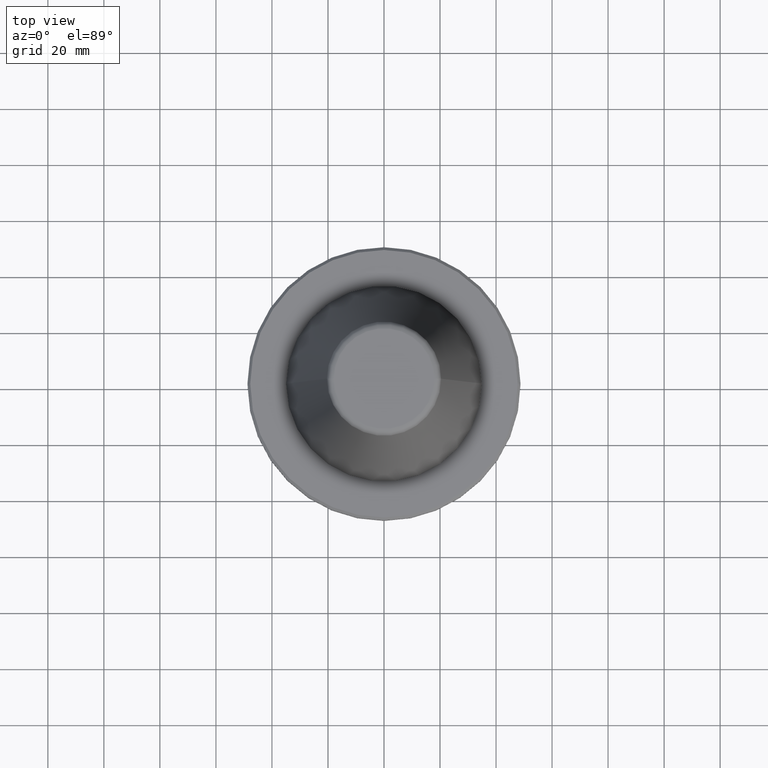
[diagram: clean part render]
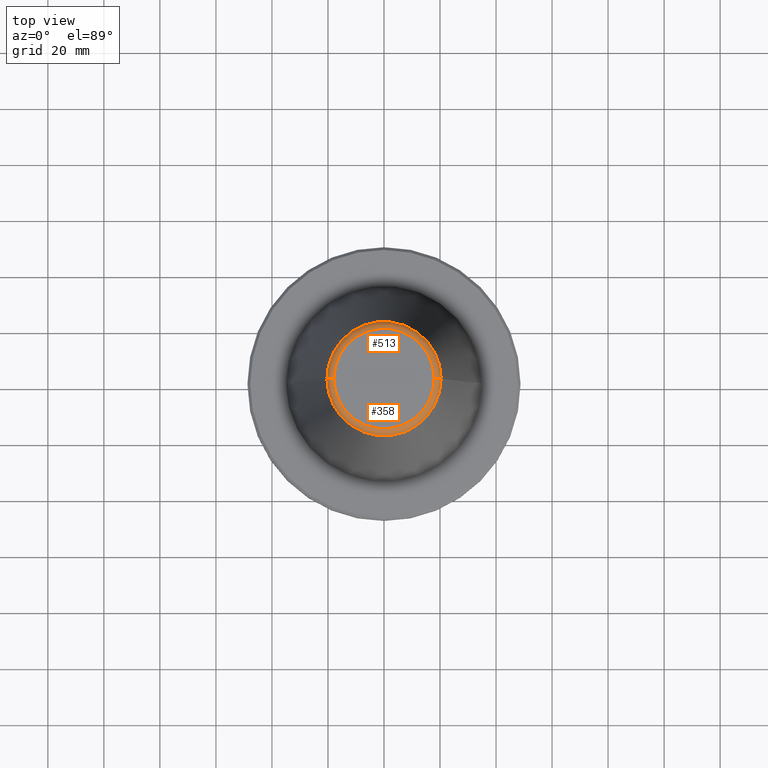
[diagram: same view with one multi-face feature highlighted, each face labeled with its STEP entity id]
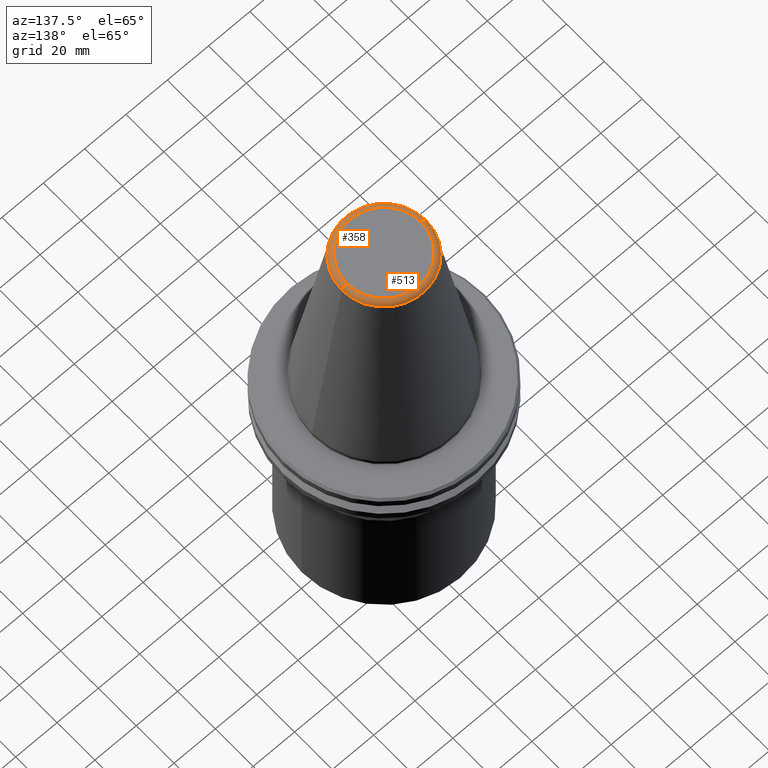
[diagram: same view with one multi-face feature highlighted, each face labeled with its STEP entity id]
A machine part, top view. The highlighted faces form ONE feature: a constant-radius fillet chain: 2 tangent blend faces with common blend radius 2.5 mm. The faces share edges in the B-rep.
A second angle (auxiliary view) of the same feature is appended — it is thin or edge-on in the first view.
Their STEP definitions:
[1] entity #513 (Torus):
#42 = AXIS2_PLACEMENT_3D ( 'NONE', #540, #792, #635 ) ;
#86 = CARTESIAN_POINT ( 'NONE',  ( -17.92446055806129500, 2.195113324887274600E-015, 99.25000000000000000 ) ) ;
#94 = AXIS2_PLACEMENT_3D ( 'NONE', #429, #507, #849 ) ;
#100 = CARTESIAN_POINT ( 'NONE',  ( 20.39829252569114000, 3.387574655494023600E-015, 99.61077055857353500 ) ) ;
#118 = DIRECTION ( 'NONE',  ( 0.0000000000000000000, -1.000000000000000000, 0.0000000000000000000 ) ) ;
#128 = CIRCLE ( 'NONE', #94, 17.92446055806129500 ) ;
#162 = AXIS2_PLACEMENT_3D ( 'NONE', #900, #118, #405 ) ;
#207 = CIRCLE ( 'NONE', #162, 2.500000000000085300 ) ;
#230 = ORIENTED_EDGE ( 'NONE', *, *, #231, .F. ) ;
#231 = EDGE_CURVE ( 'NONE', #278, #1039, #207, .T. ) ;
#278 = VERTEX_POINT ( 'NONE', #100 ) ;
#279 = CARTESIAN_POINT ( 'NONE',  ( 17.92446055806129500, 0.0000000000000000000, 101.7500000000000900 ) ) ;
#313 = AXIS2_PLACEMENT_3D ( 'NONE', #86, #1015, #547 ) ;
#402 = FACE_OUTER_BOUND ( 'NONE', #473, .T. ) ;
#405 = DIRECTION ( 'NONE',  ( 0.0000000000000000000, 0.0000000000000000000, -1.000000000000000000 ) ) ;
#420 = DIRECTION ( 'NONE',  ( -0.0000000000000000000, -0.0000000000000000000, 1.000000000000000000 ) ) ;
#429 = CARTESIAN_POINT ( 'NONE',  ( 0.0000000000000000000, 0.0000000000000000000, 101.7500000000000900 ) ) ;
#445 = ORIENTED_EDGE ( 'NONE', *, *, #476, .T. ) ;
#473 = EDGE_LOOP ( 'NONE', ( #941, #445, #496, #230 ) ) ;
#476 = EDGE_CURVE ( 'NONE', #758, #885, #662, .T. ) ;
#496 = ORIENTED_EDGE ( 'NONE', *, *, #825, .F. ) ;
#507 = DIRECTION ( 'NONE',  ( -0.0000000000000000000, -0.0000000000000000000, 1.000000000000000000 ) ) ;
#513 = ADVANCED_FACE ( 'NONE', ( #402 ), #1092, .T. ) ;
#540 = CARTESIAN_POINT ( 'NONE',  ( 0.0000000000000000000, 0.0000000000000000000, 99.61077055857353500 ) ) ;
#547 = DIRECTION ( 'NONE',  ( -1.000000000000000000, 1.224646799147353500E-016, 0.0000000000000000000 ) ) ;
#635 = DIRECTION ( 'NONE',  ( 1.000000000000000000, 0.0000000000000000000, 0.0000000000000000000 ) ) ;
#662 = CIRCLE ( 'NONE', #313, 2.500000000000082200 ) ;
#719 = AXIS2_PLACEMENT_3D ( 'NONE', #869, #420, #864 ) ;
#722 = CARTESIAN_POINT ( 'NONE',  ( -17.92446055806129500, 2.346591844926584100E-015, 101.7500000000000900 ) ) ;
#758 = VERTEX_POINT ( 'NONE', #769 ) ;
#769 = CARTESIAN_POINT ( 'NONE',  ( -20.39829252569114000, 0.0000000000000000000, 99.61077055857353500 ) ) ;
#792 = DIRECTION ( 'NONE',  ( -0.0000000000000000000, -0.0000000000000000000, 1.000000000000000000 ) ) ;
#814 = EDGE_CURVE ( 'NONE', #278, #758, #1026, .T. ) ;
#825 = EDGE_CURVE ( 'NONE', #1039, #885, #128, .T. ) ;
#849 = DIRECTION ( 'NONE',  ( 1.000000000000000000, 0.0000000000000000000, 0.0000000000000000000 ) ) ;
#864 = DIRECTION ( 'NONE',  ( 1.000000000000000000, 0.0000000000000000000, 0.0000000000000000000 ) ) ;
#869 = CARTESIAN_POINT ( 'NONE',  ( 0.0000000000000000000, 0.0000000000000000000, 99.25000000000000000 ) ) ;
#885 = VERTEX_POINT ( 'NONE', #722 ) ;
#900 = CARTESIAN_POINT ( 'NONE',  ( 17.92446055806129500, 0.0000000000000000000, 99.25000000000000000 ) ) ;
#941 = ORIENTED_EDGE ( 'NONE', *, *, #814, .T. ) ;
#1015 = DIRECTION ( 'NONE',  ( 1.224646799147353200E-016, 1.000000000000000000, 0.0000000000000000000 ) ) ;
#1026 = CIRCLE ( 'NONE', #42, 20.39829252569114000 ) ;
#1039 = VERTEX_POINT ( 'NONE', #279 ) ;
#1092 = TOROIDAL_SURFACE ( 'NONE', #719, 17.92446055806129500, 2.500000000000083000 ) ;
[2] entity #358 (Torus):
#7 = DIRECTION ( 'NONE',  ( 1.000000000000000000, 0.0000000000000000000, 0.0000000000000000000 ) ) ;
#20 = DIRECTION ( 'NONE',  ( -0.0000000000000000000, -0.0000000000000000000, 1.000000000000000000 ) ) ;
#69 = CIRCLE ( 'NONE', #500, 17.92446055806129500 ) ;
#86 = CARTESIAN_POINT ( 'NONE',  ( -17.92446055806129500, 2.195113324887274600E-015, 99.25000000000000000 ) ) ;
#99 = FACE_OUTER_BOUND ( 'NONE', #156, .T. ) ;
#100 = CARTESIAN_POINT ( 'NONE',  ( 20.39829252569114000, 3.387574655494023600E-015, 99.61077055857353500 ) ) ;
#118 = DIRECTION ( 'NONE',  ( 0.0000000000000000000, -1.000000000000000000, 0.0000000000000000000 ) ) ;
#156 = EDGE_LOOP ( 'NONE', ( #457, #442, #749, #779 ) ) ;
#162 = AXIS2_PLACEMENT_3D ( 'NONE', #900, #118, #405 ) ;
#207 = CIRCLE ( 'NONE', #162, 2.500000000000085300 ) ;
#231 = EDGE_CURVE ( 'NONE', #278, #1039, #207, .T. ) ;
#278 = VERTEX_POINT ( 'NONE', #100 ) ;
#279 = CARTESIAN_POINT ( 'NONE',  ( 17.92446055806129500, 0.0000000000000000000, 101.7500000000000900 ) ) ;
#289 = CIRCLE ( 'NONE', #295, 20.39829252569114000 ) ;
#295 = AXIS2_PLACEMENT_3D ( 'NONE', #913, #20, #842 ) ;
#305 = TOROIDAL_SURFACE ( 'NONE', #1074, 17.92446055806129500, 2.500000000000083000 ) ;
#313 = AXIS2_PLACEMENT_3D ( 'NONE', #86, #1015, #547 ) ;
#358 = ADVANCED_FACE ( 'NONE', ( #99 ), #305, .T. ) ;
#405 = DIRECTION ( 'NONE',  ( 0.0000000000000000000, 0.0000000000000000000, -1.000000000000000000 ) ) ;
#442 = ORIENTED_EDGE ( 'NONE', *, *, #661, .T. ) ;
#457 = ORIENTED_EDGE ( 'NONE', *, *, #476, .F. ) ;
#476 = EDGE_CURVE ( 'NONE', #758, #885, #662, .T. ) ;
#500 = AXIS2_PLACEMENT_3D ( 'NONE', #879, #1010, #7 ) ;
#547 = DIRECTION ( 'NONE',  ( -1.000000000000000000, 1.224646799147353500E-016, 0.0000000000000000000 ) ) ;
#661 = EDGE_CURVE ( 'NONE', #758, #278, #289, .T. ) ;
#662 = CIRCLE ( 'NONE', #313, 2.500000000000082200 ) ;
#682 = DIRECTION ( 'NONE',  ( 1.000000000000000000, 0.0000000000000000000, 0.0000000000000000000 ) ) ;
#710 = DIRECTION ( 'NONE',  ( -0.0000000000000000000, -0.0000000000000000000, 1.000000000000000000 ) ) ;
#722 = CARTESIAN_POINT ( 'NONE',  ( -17.92446055806129500, 2.346591844926584100E-015, 101.7500000000000900 ) ) ;
#749 = ORIENTED_EDGE ( 'NONE', *, *, #231, .T. ) ;
#758 = VERTEX_POINT ( 'NONE', #769 ) ;
#769 = CARTESIAN_POINT ( 'NONE',  ( -20.39829252569114000, 0.0000000000000000000, 99.61077055857353500 ) ) ;
#779 = ORIENTED_EDGE ( 'NONE', *, *, #884, .F. ) ;
#842 = DIRECTION ( 'NONE',  ( 1.000000000000000000, 0.0000000000000000000, 0.0000000000000000000 ) ) ;
#879 = CARTESIAN_POINT ( 'NONE',  ( 0.0000000000000000000, 0.0000000000000000000, 101.7500000000000900 ) ) ;
#884 = EDGE_CURVE ( 'NONE', #885, #1039, #69, .T. ) ;
#885 = VERTEX_POINT ( 'NONE', #722 ) ;
#900 = CARTESIAN_POINT ( 'NONE',  ( 17.92446055806129500, 0.0000000000000000000, 99.25000000000000000 ) ) ;
#913 = CARTESIAN_POINT ( 'NONE',  ( 0.0000000000000000000, 0.0000000000000000000, 99.61077055857353500 ) ) ;
#1010 = DIRECTION ( 'NONE',  ( -0.0000000000000000000, -0.0000000000000000000, 1.000000000000000000 ) ) ;
#1015 = DIRECTION ( 'NONE',  ( 1.224646799147353200E-016, 1.000000000000000000, 0.0000000000000000000 ) ) ;
#1039 = VERTEX_POINT ( 'NONE', #279 ) ;
#1053 = CARTESIAN_POINT ( 'NONE',  ( 0.0000000000000000000, 0.0000000000000000000, 99.25000000000000000 ) ) ;
#1074 = AXIS2_PLACEMENT_3D ( 'NONE', #1053, #710, #682 ) ;